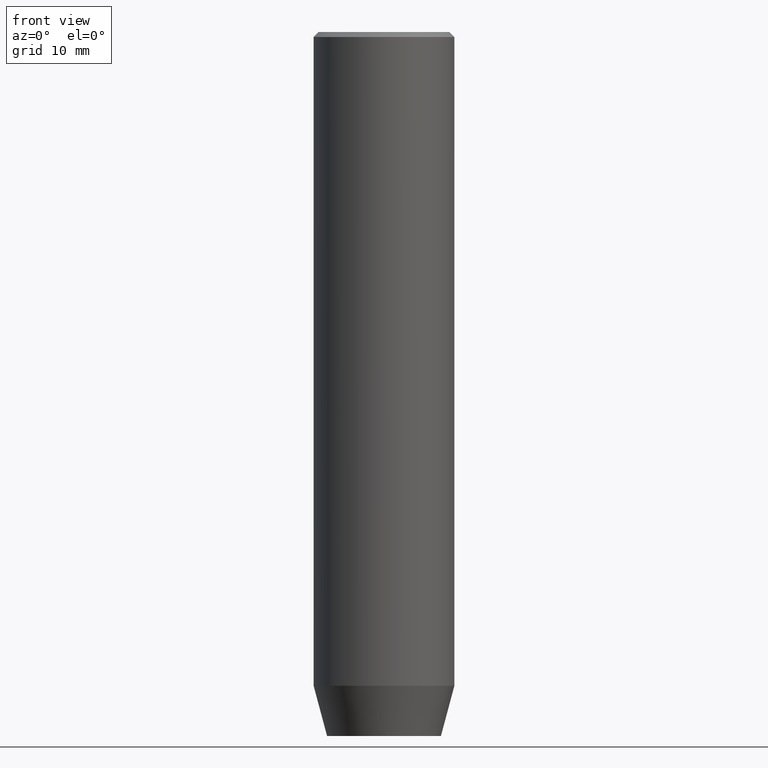
[diagram: clean part render]
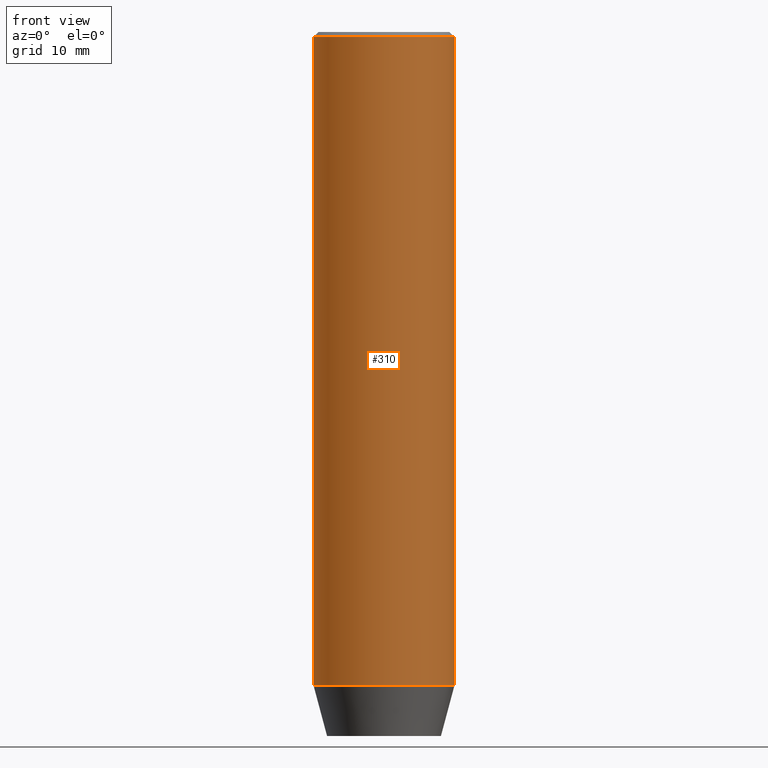
[diagram: same view with one face highlighted and labeled with its STEP entity id]
A machine part, front view. The second image highlights one B-rep face of the part: STEP entity #310.
In plain terms, the highlighted cylindrical surface (partial cylindrical patch) has radius 7 mm, axis along (-0, -0, 1).
Its self-contained STEP definition (entity closure, byte-faithful):
#29 = DIRECTION ( 'NONE',  ( -0.000000000000000000, -0.000000000000000000, 1.000000000000000000 ) ) ;
#38 = EDGE_CURVE ( 'NONE', #54, #403, #334, .T. ) ;
#54 = VERTEX_POINT ( 'NONE', #484 ) ;
#71 = DIRECTION ( 'NONE',  ( -0.000000000000000000, -0.000000000000000000, 1.000000000000000000 ) ) ;
#86 = CARTESIAN_POINT ( 'NONE',  ( 0.000000000000000000, 0.000000000000000000, -65.00000000000000000 ) ) ;
#91 = EDGE_CURVE ( 'NONE', #157, #234, #526, .T. ) ;
#115 = FACE_OUTER_BOUND ( 'NONE', #143, .T. ) ;
#124 = CARTESIAN_POINT ( 'NONE',  ( 7.000000000000000000, 0.000000000000000000, 0.000000000000000000 ) ) ;
#140 = ORIENTED_EDGE ( 'NONE', *, *, #528, .T. ) ;
#143 = EDGE_LOOP ( 'NONE', ( #364, #212, #202, #140 ) ) ;
#157 = VERTEX_POINT ( 'NONE', #378 ) ;
#179 = DIRECTION ( 'NONE',  ( 1.000000000000000000, 0.000000000000000000, 0.000000000000000000 ) ) ;
#202 = ORIENTED_EDGE ( 'NONE', *, *, #91, .T. ) ;
#206 = CYLINDRICAL_SURFACE ( 'NONE', #419, 7.000000000000000000 ) ;
#212 = ORIENTED_EDGE ( 'NONE', *, *, #412, .T. ) ;
#234 = VERTEX_POINT ( 'NONE', #427 ) ;
#253 = CARTESIAN_POINT ( 'NONE',  ( 0.000000000000000000, 0.000000000000000000, 0.000000000000000000 ) ) ;
#267 = CARTESIAN_POINT ( 'NONE',  ( 0.000000000000000000, 0.000000000000000000, -0.4999999999999908962 ) ) ;
#270 = CARTESIAN_POINT ( 'NONE',  ( -7.000000000000000000, 8.572527594031473190E-16, -0.4999999999999908962 ) ) ;
#275 = VECTOR ( 'NONE', #435, 1000.000000000000000 ) ;
#298 = AXIS2_PLACEMENT_3D ( 'NONE', #86, #440, #402 ) ;
#299 = DIRECTION ( 'NONE',  ( 1.000000000000000000, 0.000000000000000000, 0.000000000000000000 ) ) ;
#310 = ADVANCED_FACE ( 'NONE', ( #115 ), #206, .T. ) ;
#334 = LINE ( 'NONE', #559, #428 ) ;
#357 = DIRECTION ( 'NONE',  ( 0.000000000000000000, 0.000000000000000000, -1.000000000000000000 ) ) ;
#364 = ORIENTED_EDGE ( 'NONE', *, *, #38, .F. ) ;
#372 = AXIS2_PLACEMENT_3D ( 'NONE', #267, #357, #179 ) ;
#378 = CARTESIAN_POINT ( 'NONE',  ( 7.000000000000000000, 0.000000000000000000, -65.00000000000000000 ) ) ;
#402 = DIRECTION ( 'NONE',  ( 1.000000000000000000, 0.000000000000000000, 0.000000000000000000 ) ) ;
#403 = VERTEX_POINT ( 'NONE', #270 ) ;
#412 = EDGE_CURVE ( 'NONE', #54, #157, #485, .T. ) ;
#419 = AXIS2_PLACEMENT_3D ( 'NONE', #253, #71, #299 ) ;
#427 = CARTESIAN_POINT ( 'NONE',  ( 7.000000000000000000, 0.000000000000000000, -0.4999999999999908962 ) ) ;
#428 = VECTOR ( 'NONE', #29, 1000.000000000000000 ) ;
#435 = DIRECTION ( 'NONE',  ( -0.000000000000000000, -0.000000000000000000, 1.000000000000000000 ) ) ;
#440 = DIRECTION ( 'NONE',  ( -0.000000000000000000, -0.000000000000000000, 1.000000000000000000 ) ) ;
#467 = CIRCLE ( 'NONE', #372, 7.000000000000000000 ) ;
#484 = CARTESIAN_POINT ( 'NONE',  ( -7.000000000000000000, 8.572527594031473190E-16, -65.00000000000000000 ) ) ;
#485 = CIRCLE ( 'NONE', #298, 7.000000000000000000 ) ;
#526 = LINE ( 'NONE', #124, #275 ) ;
#528 = EDGE_CURVE ( 'NONE', #234, #403, #467, .T. ) ;
#559 = CARTESIAN_POINT ( 'NONE',  ( -7.000000000000000000, 8.572527594031473190E-16, 0.000000000000000000 ) ) ;